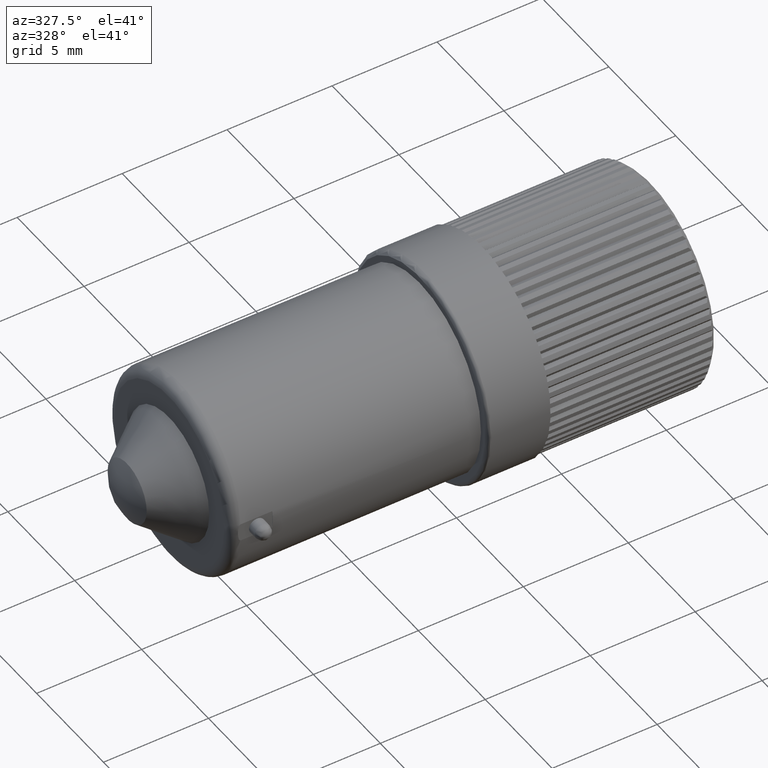
[diagram: clean part render]
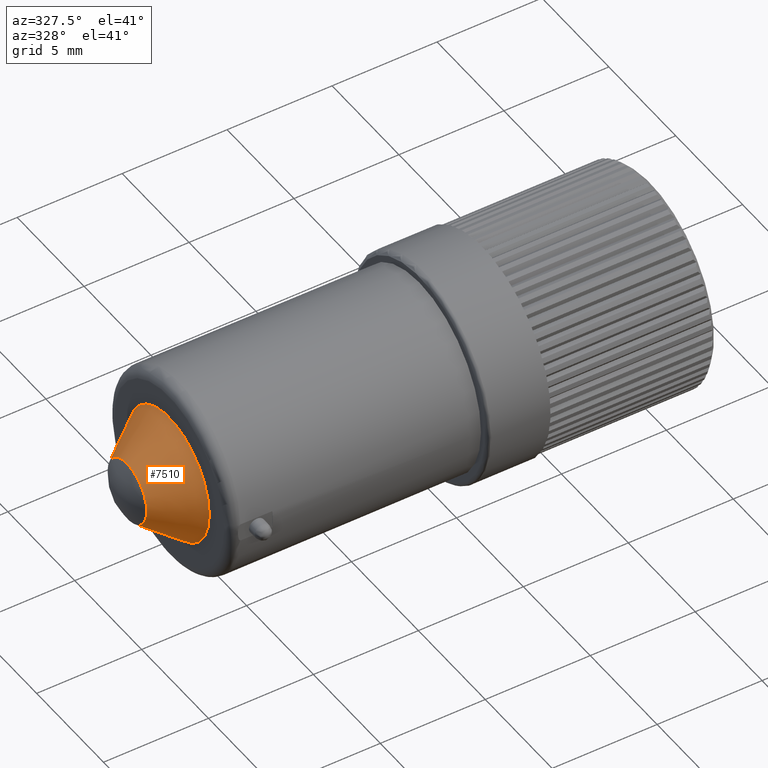
[diagram: same view with one face highlighted and labeled with its STEP entity id]
A machine part, auxiliary view. The second image highlights one B-rep face of the part: STEP entity #7510.
In plain terms, the highlighted conical surface has half-angle 37.581 deg.
Its self-contained STEP definition (entity closure, byte-faithful):
#7418=CARTESIAN_POINT('',(-11.705609115138564,6.112961736609107,0.0));
#7419=VERTEX_POINT('',#7418);
#7420=CARTESIAN_POINT('',(-11.705609115138564,3.112961736609106,0.0));
#7421=DIRECTION('',(1.0,0.0,0.0));
#7422=DIRECTION('',(0.0,1.0,0.0));
#7423=AXIS2_PLACEMENT_3D('',#7420,#7421,#7422);
#7424=CIRCLE('',#7423,3.000000000000000);
#7425=EDGE_CURVE('',#7419,#7419,#7424,.T.);
#7487=CARTESIAN_POINT('',(-13.705609115138564,4.573801358252828,0.0));
#7488=VERTEX_POINT('',#7487);
#7489=CARTESIAN_POINT('',(-13.705609115138564,3.112961736609106,0.0));
#7490=DIRECTION('',(1.0,0.0,0.0));
#7491=DIRECTION('',(0.0,1.0,0.0));
#7492=AXIS2_PLACEMENT_3D('',#7489,#7490,#7491);
#7493=CIRCLE('',#7492,1.460839621643723);
#7494=EDGE_CURVE('',#7488,#7488,#7493,.T.);
#7499=CARTESIAN_POINT('',(-12.705609115138564,3.112961736609106,0.0));
#7500=DIRECTION('',(1.0,0.0,0.0));
#7501=DIRECTION('',(0.0,1.0,0.0));
#7502=AXIS2_PLACEMENT_3D('',#7499,#7500,#7501);
#7503=CONICAL_SURFACE('',#7502,2.230419810821862,37.581167706957153);
#7504=ORIENTED_EDGE('',*,*,#7425,.F.);
#7505=EDGE_LOOP('',(#7504));
#7506=FACE_OUTER_BOUND('',#7505,.T.);
#7507=ORIENTED_EDGE('',*,*,#7494,.T.);
#7508=EDGE_LOOP('',(#7507));
#7509=FACE_BOUND('',#7508,.T.);
#7510=ADVANCED_FACE('',(#7506,#7509),#7503,.T.);